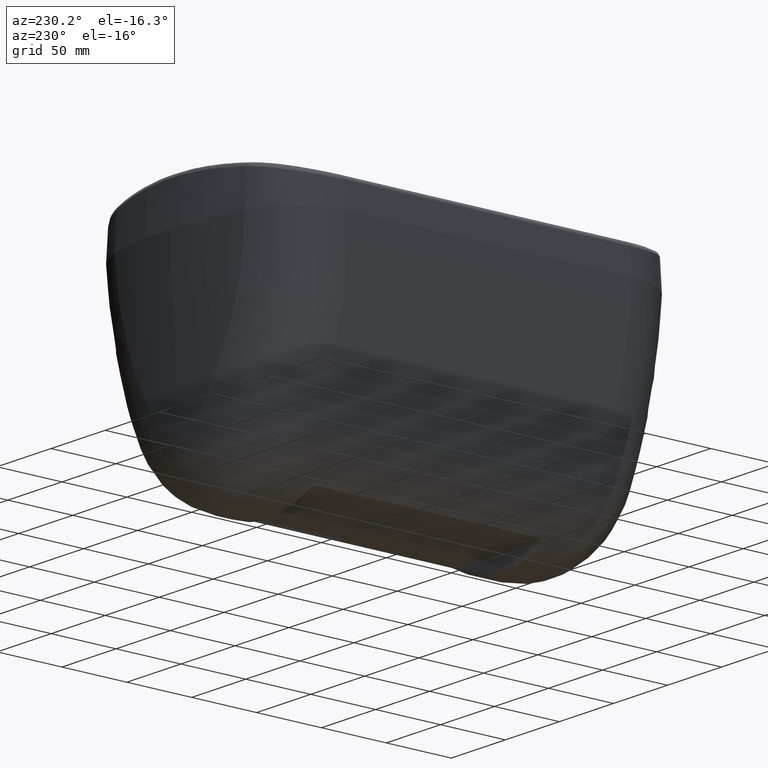
[diagram: clean part render]
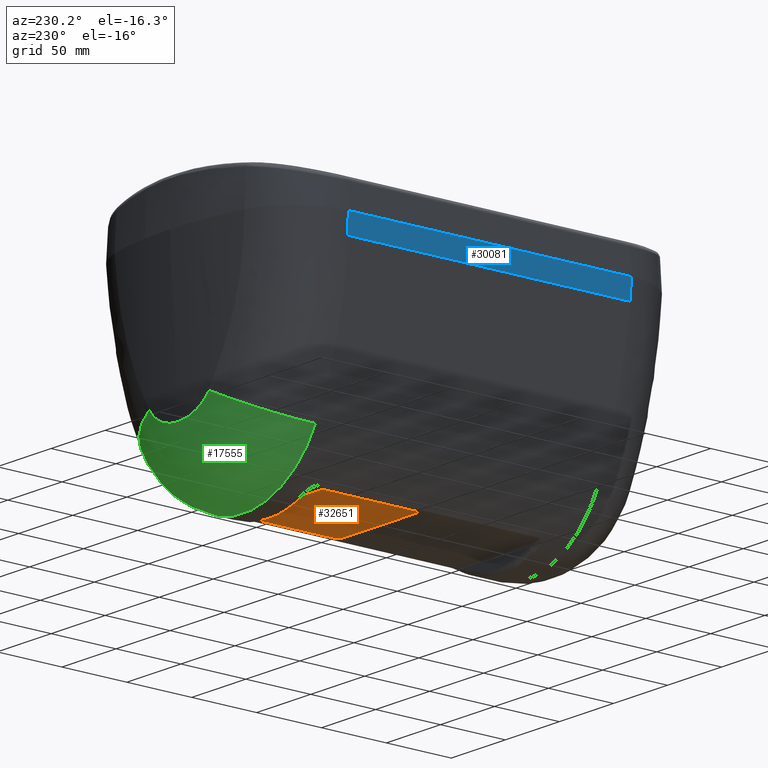
[diagram: same view with three faces highlighted in distinct colors, each labeled with its STEP entity id]
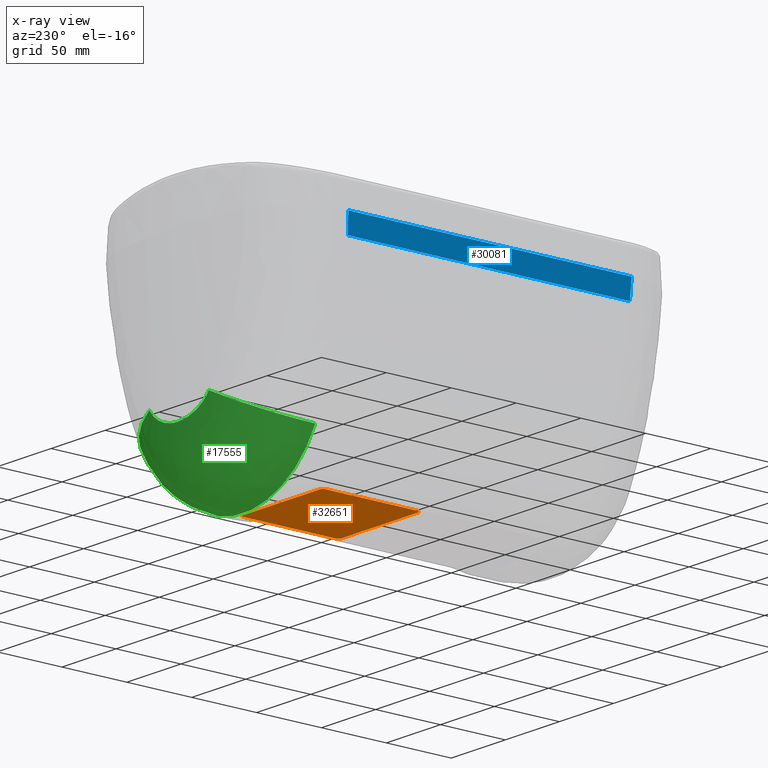
[diagram: x-ray of the same camera — body ghosted, the three highlighted faces saturated]
A machine part, auxiliary view with three faces highlighted in distinct colors.
The next image is the same camera in x-ray (body ghosted, the three faces saturated) — at least one of them is partly hidden behind the body in this view.
Their STEP definitions:

[orange] entity #32651 — the highlighted planar face has unit normal (0, 0, -1).
#323 = CARTESIAN_POINT ( 'NONE',  ( 35.49999999999997868, 57.50000000000010658, 91.49999999999971578 ) ) ;
#661 = VERTEX_POINT ( 'NONE', #11418 ) ;
#4736 = DIRECTION ( 'NONE',  ( 1.387778780781440499E-16, 4.287526199837195250E-16, -1.000000000000000000 ) ) ;
#4924 = VECTOR ( 'NONE', #21947, 1000.000000000000000 ) ;
#6111 = ORIENTED_EDGE ( 'NONE', *, *, #19434, .T. ) ;
#6197 = DIRECTION ( 'NONE',  ( 1.387778780781440499E-16, 4.287526199837195250E-16, -1.000000000000000000 ) ) ;
#6455 = CARTESIAN_POINT ( 'NONE',  ( -35.50000000000002842, 55.00000000000004974, 91.49999999999970157 ) ) ;
#7437 = CIRCLE ( 'NONE', #23354, 2.500000000000002220 ) ;
#7470 = CARTESIAN_POINT ( 'NONE',  ( -35.50000000000027711, 128.5000000000000284, 91.49999999999974420 ) ) ;
#7553 = AXIS2_PLACEMENT_3D ( 'NONE', #18466, #4736, #34720 ) ;
#7983 = DIRECTION ( 'NONE',  ( 0.0000000000000000000, 1.000000000000000000, 0.0000000000000000000 ) ) ;
#8256 = CIRCLE ( 'NONE', #19076, 2.499999999999919176 ) ;
#8735 = CARTESIAN_POINT ( 'NONE',  ( 35.49999999999997868, 57.50000000000010658, 91.49999999999971578 ) ) ;
#8780 = ORIENTED_EDGE ( 'NONE', *, *, #9532, .T. ) ;
#9532 = EDGE_CURVE ( 'Defeatured_0_319+Defeatured_0_315+Defeatured_0_316+Defeatured_0_314', #661, #32474, #8256, .T. ) ;
#10257 = EDGE_CURVE ( 'Defeatured_0_319+Defeatured_0_313+Defeatured_0_314+Defeatured_0_312', #27743, #18774, #29270, .T. ) ;
#10911 = LINE ( 'NONE', #32365, #4924 ) ;
#11136 = AXIS2_PLACEMENT_3D ( 'NONE', #22808, #24757, #22105 ) ;
#11418 = CARTESIAN_POINT ( 'NONE',  ( -38.00000000000017764, 128.5000000000000284, 91.49999999999974420 ) ) ;
#12588 = LINE ( 'NONE', #34388, #17405 ) ;
#12768 = DIRECTION ( 'NONE',  ( 1.000000000000000000, 1.954618001100622051E-15, 0.0000000000000000000 ) ) ;
#12774 = EDGE_CURVE ( 'Defeatured_0_319+Defeatured_0_316+Defeatured_0_317+Defeatured_0_315', #29913, #661, #10911, .T. ) ;
#13197 = VECTOR ( 'NONE', #21566, 1000.000000000000000 ) ;
#13737 = AXIS2_PLACEMENT_3D ( 'NONE', #8735, #30585, #30761 ) ;
#14960 = CARTESIAN_POINT ( 'NONE',  ( -38.00000000000007816, 57.50000000000010658, 91.49999999999970157 ) ) ;
#15835 = EDGE_CURVE ( 'Defeatured_0_319+Defeatured_0_317+Defeatured_0_318+Defeatured_0_316', #29420, #29913, #21774, .T. ) ;
#17326 = ORIENTED_EDGE ( 'NONE', *, *, #31421, .T. ) ;
#17405 = VECTOR ( 'NONE', #23779, 1000.000000000000000 ) ;
#18466 = CARTESIAN_POINT ( 'NONE',  ( -35.50000000000002842, 57.50000000000010658, 91.49999999999970157 ) ) ;
#18774 = VERTEX_POINT ( 'NONE', #27197 ) ;
#18958 = FACE_OUTER_BOUND ( 'NONE', #30240, .T. ) ;
#19076 = AXIS2_PLACEMENT_3D ( 'NONE', #7470, #29481, #7983 ) ;
#19353 = EDGE_CURVE ( 'Defeatured_0_319+Defeatured_0_314+Defeatured_0_315+Defeatured_0_313', #32474, #27743, #29074, .T. ) ;
#19434 = EDGE_CURVE ( 'Defeatured_0_319+Defeatured_0_312+Defeatured_0_313+Defeatured_0_311', #18774, #30942, #12588, .T. ) ;
#21384 = ORIENTED_EDGE ( 'NONE', *, *, #15835, .T. ) ;
#21566 = DIRECTION ( 'NONE',  ( -1.000000000000000000, -7.818472004402510293E-16, -1.954618001100627573E-16 ) ) ;
#21774 = CIRCLE ( 'NONE', #7553, 2.500000000000043965 ) ;
#21931 = CARTESIAN_POINT ( 'NONE',  ( 35.49999999999997868, 55.00000000000010658, 91.49999999999971578 ) ) ;
#21947 = DIRECTION ( 'NONE',  ( -1.661425300935535311E-15, 1.000000000000000000, 5.863854003301890608E-16 ) ) ;
#22105 = DIRECTION ( 'NONE',  ( 0.0000000000000000000, 1.000000000000000000, 0.0000000000000000000 ) ) ;
#22808 = CARTESIAN_POINT ( 'NONE',  ( 35.49999999999992895, 128.5000000000001137, 91.49999999999974420 ) ) ;
#23354 = AXIS2_PLACEMENT_3D ( 'NONE', #323, #6197, #24877 ) ;
#23429 = CARTESIAN_POINT ( 'NONE',  ( -35.50000000000031264, 130.9999999999999716, 91.49999999999974420 ) ) ;
#23628 = ORIENTED_EDGE ( 'NONE', *, *, #33341, .T. ) ;
#23779 = DIRECTION ( 'NONE',  ( 7.818472004402510293E-16, -1.000000000000000000, -3.909236002201255146E-16 ) ) ;
#24757 = DIRECTION ( 'NONE',  ( 1.387778780781440499E-16, 4.287526199837195250E-16, -1.000000000000000000 ) ) ;
#24877 = DIRECTION ( 'NONE',  ( 0.0000000000000000000, 1.000000000000000000, 0.0000000000000000000 ) ) ;
#26813 = ORIENTED_EDGE ( 'NONE', *, *, #12774, .T. ) ;
#27197 = CARTESIAN_POINT ( 'NONE',  ( 37.99999999999992184, 128.5000000000001137, 91.49999999999974420 ) ) ;
#27395 = LINE ( 'NONE', #21931, #13197 ) ;
#27743 = VERTEX_POINT ( 'NONE', #29761 ) ;
#28013 = CARTESIAN_POINT ( 'NONE',  ( 37.99999999999997868, 57.50000000000010658, 91.49999999999971578 ) ) ;
#28575 = CARTESIAN_POINT ( 'NONE',  ( -35.50000000000027711, 130.9999999999999432, 91.49999999999974420 ) ) ;
#29074 = LINE ( 'NONE', #23429, #32656 ) ;
#29270 = CIRCLE ( 'NONE', #11136, 2.500000000000002220 ) ;
#29420 = VERTEX_POINT ( 'NONE', #6455 ) ;
#29481 = DIRECTION ( 'NONE',  ( 1.387778780781440499E-16, 4.287526199837195250E-16, -1.000000000000000000 ) ) ;
#29564 = ORIENTED_EDGE ( 'NONE', *, *, #10257, .T. ) ;
#29761 = CARTESIAN_POINT ( 'NONE',  ( 35.49999999999989342, 131.0000000000001137, 91.49999999999974420 ) ) ;
#29913 = VERTEX_POINT ( 'NONE', #14960 ) ;
#30240 = EDGE_LOOP ( 'NONE', ( #17326, #23628, #21384, #26813, #8780, #34553, #29564, #6111 ) ) ;
#30542 = CARTESIAN_POINT ( 'NONE',  ( 35.49999999999997868, 55.00000000000010658, 91.49999999999971578 ) ) ;
#30585 = DIRECTION ( 'NONE',  ( 1.387778780781440252E-16, 4.287526199837195743E-16, -1.000000000000000000 ) ) ;
#30761 = DIRECTION ( 'NONE',  ( 0.0000000000000000000, 1.000000000000000000, 4.287526199837195743E-16 ) ) ;
#30942 = VERTEX_POINT ( 'NONE', #28013 ) ;
#31421 = EDGE_CURVE ( 'Defeatured_0_319+Defeatured_0_311+Defeatured_0_312+Defeatured_0_318', #30942, #31521, #7437, .T. ) ;
#31521 = VERTEX_POINT ( 'NONE', #30542 ) ;
#32365 = CARTESIAN_POINT ( 'NONE',  ( -38.00000000000006395, 57.50000000000010658, 91.49999999999970157 ) ) ;
#32474 = VERTEX_POINT ( 'NONE', #28575 ) ;
#32651 = ADVANCED_FACE ( 'Defeatured_0_319', ( #18958 ), #35051, .T. ) ;
#32656 = VECTOR ( 'NONE', #12768, 1000.000000000000000 ) ;
#33341 = EDGE_CURVE ( 'Defeatured_0_319+Defeatured_0_318+Defeatured_0_311+Defeatured_0_317', #31521, #29420, #27395, .T. ) ;
#34388 = CARTESIAN_POINT ( 'NONE',  ( 37.99999999999992184, 128.5000000000001137, 91.49999999999974420 ) ) ;
#34553 = ORIENTED_EDGE ( 'NONE', *, *, #19353, .T. ) ;
#34720 = DIRECTION ( 'NONE',  ( 0.0000000000000000000, 1.000000000000000000, 0.0000000000000000000 ) ) ;
#35051 = PLANE ( 'NONE',  #13737 ) ;

[blue] entity #30081 — the highlighted planar face has unit normal (0.9975, -0, 0.0712).
#713 = VECTOR ( 'NONE', #15178, 1000.000000000000000 ) ;
#1327 = EDGE_LOOP ( 'NONE', ( #2132, #31029, #1846, #33406 ) ) ;
#1605 = CARTESIAN_POINT ( 'NONE',  ( -96.92857142857096164, -113.1742597790912015, 228.9999999999998863 ) ) ;
#1783 = DIRECTION ( 'NONE',  ( 2.465190328815662439E-32, 1.000000000000000000, 4.287526199837192785E-16 ) ) ;
#1846 = ORIENTED_EDGE ( 'NONE', *, *, #19545, .F. ) ;
#1945 = DIRECTION ( 'NONE',  ( 0.9974586998307349850, -3.054735934842729368E-17, 0.07124704998790964972 ) ) ;
#2042 = VECTOR ( 'NONE', #18979, 1000.000000000000114 ) ;
#2132 = ORIENTED_EDGE ( 'NONE', *, *, #27276, .F. ) ;
#4801 = LINE ( 'NONE', #1605, #29772 ) ;
#6626 = LINE ( 'NONE', #11820, #713 ) ;
#7833 = LINE ( 'NONE', #26503, #21120 ) ;
#7970 = CARTESIAN_POINT ( 'NONE',  ( -98.00000000000001421, -113.1742597790912015, 243.9999999999999147 ) ) ;
#8547 = CARTESIAN_POINT ( 'NONE',  ( -96.92857142857060637, 160.4561606874803203, 228.9999999999907061 ) ) ;
#8761 = CARTESIAN_POINT ( 'NONE',  ( -98.00000000000049738, 160.9795617300109711, 244.0000000000437979 ) ) ;
#10833 = FACE_OUTER_BOUND ( 'NONE', #1327, .T. ) ;
#11820 = CARTESIAN_POINT ( 'NONE',  ( -98.00000000000001421, -113.1742597790912015, 243.9999999999999147 ) ) ;
#13110 = VERTEX_POINT ( 'NONE', #8761 ) ;
#13567 = VERTEX_POINT ( 'NONE', #26573 ) ;
#13640 = CARTESIAN_POINT ( 'NONE',  ( -98.00000000000005684, 160.9795617300000288, 244.0000000000006537 ) ) ;
#15178 = DIRECTION ( 'NONE',  ( -2.465190328815662439E-32, -1.000000000000000000, -4.287526199837192785E-16 ) ) ;
#18689 = DIRECTION ( 'NONE',  ( 0.07124704998790964972, 4.276630308779818527E-16, -0.9974586998307349850 ) ) ;
#18720 = DIRECTION ( 'NONE',  ( 0.07120393591655135856, 0.03478366668927578703, -0.9968551028317209628 ) ) ;
#18979 = DIRECTION ( 'NONE',  ( -0.07120393591655764520, 0.03478366668652554256, 0.9968551028318164420 ) ) ;
#19545 = EDGE_CURVE ( 'Defeatured_0_277+Defeatured_0_275+Defeatured_0_276+Defeatured_0_262', #29760, #13110, #24816, .T. ) ;
#21120 = VECTOR ( 'NONE', #18720, 1000.000000000000114 ) ;
#22722 = EDGE_CURVE ( 'Defeatured_0_261+Defeatured_0_275+Defeatured_0_262+Defeatured_0_252', #13110, #29133, #6626, .T. ) ;
#24494 = EDGE_CURVE ( 'Defeatured_0_292+Defeatured_0_275+Defeatured_0_274+Defeatured_0_276', #13567, #29760, #4801, .T. ) ;
#24816 = LINE ( 'NONE', #13640, #2042 ) ;
#24827 = AXIS2_PLACEMENT_3D ( 'NONE', #7970, #1945, #18689 ) ;
#26503 = CARTESIAN_POINT ( 'NONE',  ( -96.92857142857144481, -56.88702100530215233, 228.9999999999999147 ) ) ;
#26573 = CARTESIAN_POINT ( 'NONE',  ( -96.92857142857126007, -56.88702100530224470, 228.9999999999999147 ) ) ;
#27276 = EDGE_CURVE ( 'Defeatured_0_268+Defeatured_0_275+Defeatured_0_252+Defeatured_0_274', #29133, #13567, #7833, .T. ) ;
#29133 = VERTEX_POINT ( 'NONE', #29641 ) ;
#29641 = CARTESIAN_POINT ( 'NONE',  ( -98.00000000000002842, -57.41042204809630789, 243.9999999999999432 ) ) ;
#29760 = VERTEX_POINT ( 'NONE', #8547 ) ;
#29772 = VECTOR ( 'NONE', #1783, 1000.000000000000000 ) ;
#30081 = ADVANCED_FACE ( 'Defeatured_0_275', ( #10833 ), #34959, .F. ) ;
#31029 = ORIENTED_EDGE ( 'NONE', *, *, #22722, .F. ) ;
#33406 = ORIENTED_EDGE ( 'NONE', *, *, #24494, .F. ) ;
#34959 = PLANE ( 'NONE',  #24827 ) ;

[green] entity #17555 — the highlighted face is a freeform B-spline surface patch.
#106 = CARTESIAN_POINT ( 'NONE',  ( -57.33067103575692158, 160.2125946245564307, 105.8176486531847758 ) ) ;
#286 = CARTESIAN_POINT ( 'NONE',  ( -66.52291700636753546, 160.1409723307727404, 119.7497775905929984 ) ) ;
#633 = CARTESIAN_POINT ( 'NONE',  ( -20.36847864784035167, 160.5835551206649825, 81.83161361336055961 ) ) ;
#817 = CARTESIAN_POINT ( 'NONE',  ( -17.56351056426971624, 210.1920347754916634, 130.7676854332778476 ) ) ;
#820 = CARTESIAN_POINT ( 'NONE',  ( 13.38365482053825950, 160.6201742101183356, 80.18848205519901740 ) ) ;
#1008 = CARTESIAN_POINT ( 'NONE',  ( -20.60353160150919294, 160.5820856241054173, 81.89857197094968910 ) ) ;
#1094 = CARTESIAN_POINT ( 'NONE',  ( -13.66642305645340905, 210.3411685142447709, 128.9129391054650569 ) ) ;
#1136 = CARTESIAN_POINT ( 'NONE',  ( 25.02731979705722409, 209.8603468405567014, 136.6505148071808549 ) ) ;
#1173 = CARTESIAN_POINT ( 'NONE',  ( -11.85477433298538941, 210.3973711055220974, 128.2817223637825066 ) ) ;
#1176 = CARTESIAN_POINT ( 'NONE',  ( 35.46917483433931295, 160.4589987432394196, 87.95414820769990172 ) ) ;
#1264 = CARTESIAN_POINT ( 'NONE',  ( 7.089153362493922472, 208.0612755730997492, 79.25185832017406540 ) ) ;
#1355 = CARTESIAN_POINT ( 'NONE',  ( -27.75210603762990402, 160.5304221476889950, 84.32743137069282113 ) ) ;
#1442 = CARTESIAN_POINT ( 'NONE',  ( -14.27542655665100568, 207.9204004448808121, 80.28805695399408648 ) ) ;
#1485 = CARTESIAN_POINT ( 'NONE',  ( 22.12205943028476440, 209.9902644506617264, 133.8733944043611359 ) ) ;
#1526 = CARTESIAN_POINT ( 'NONE',  ( 38.92670770618020981, 160.4231119721449090, 89.94878527929127188 ) ) ;
#1611 = FACE_OUTER_BOUND ( 'NONE', #13694, .T. ) ;
#1653 = CARTESIAN_POINT ( 'NONE',  ( 1.172619606159756689, 210.5777893796681042, 126.3982042885579204 ) ) ;
#1700 = CARTESIAN_POINT ( 'NONE',  ( 54.62712542955431871, 160.2424995661893945, 102.7617585046050834 ) ) ;
#1788 = CARTESIAN_POINT ( 'NONE',  ( -41.94116541870660342, 160.3906967706308251, 91.79734804991701935 ) ) ;
#1829 = CARTESIAN_POINT ( 'NONE',  ( 18.67107833760407942, 210.1447749684742519, 131.4258098915974244 ) ) ;
#2067 = ORIENTED_EDGE ( 'NONE', *, *, #14010, .F. ) ;
#2439 = CARTESIAN_POINT ( 'NONE',  ( -55.12716149219672701, 160.2368300896789606, 103.3034288671561143 ) ) ;
#2532 = DIRECTION ( 'NONE',  ( 0.4542897975401229971, -0.003587583714181883862, 0.8908467371518223876 ) ) ;
#2604 = DIRECTION ( 'NONE',  ( -0.8908524701430607928, 0.0000000000000000000, -0.4542927210951182571 ) ) ;
#2620 = CARTESIAN_POINT ( 'NONE',  ( -48.02035829806967371, 160.3197984049205900, 96.48717611118780724 ) ) ;
#2667 = CARTESIAN_POINT ( 'NONE',  ( 27.47262071041258835, 209.7702916524337695, 139.8634512323720571 ) ) ;
#2791 = CARTESIAN_POINT ( 'NONE',  ( -50.89880937012636508, 160.2858893291745233, 99.02761639448239350 ) ) ;
#2956 = CARTESIAN_POINT ( 'NONE',  ( -47.43949260410020230, 160.3266279661127669, 96.00529458582791165 ) ) ;
#3142 = CARTESIAN_POINT ( 'NONE',  ( -19.22123385035990140, 210.1208081338485840, 131.7669693508614159 ) ) ;
#3320 = CARTESIAN_POINT ( 'NONE',  ( -2.327596318080734417, 210.5732280334680695, 126.4435979247294455 ) ) ;
#3322 = CARTESIAN_POINT ( 'NONE',  ( -42.60413567215064035, 160.3822551266392793, 92.34047857060933495 ) ) ;
#3497 = CARTESIAN_POINT ( 'NONE',  ( -5.309227279275379630, 210.5424094969016835, 126.7507606232306188 ) ) ;
#3500 = CARTESIAN_POINT ( 'NONE',  ( 16.79937527465589042, 160.6039751241641227, 80.90890086929894665 ) ) ;
#3686 = CARTESIAN_POINT ( 'NONE',  ( -39.67105950344529930, 160.4149421907150668, 90.40886562933756920 ) ) ;
#3780 = CARTESIAN_POINT ( 'NONE',  ( -26.17736543490471135, 209.8070539495837750, 137.8297893907110563 ) ) ;
#3824 = CARTESIAN_POINT ( 'NONE',  ( 17.96328689579580029, 210.1749955297590873, 131.0040081534970113 ) ) ;
#3866 = CARTESIAN_POINT ( 'NONE',  ( 36.75794342759561317, 160.4458950909074986, 88.67178000601651888 ) ) ;
#4033 = CARTESIAN_POINT ( 'NONE',  ( 20.21668405134255764, 160.5844966516118006, 81.78875651112531386 ) ) ;
#4125 = CARTESIAN_POINT ( 'NONE',  ( -26.78305227286630696, 160.5391247295168000, 83.88341972647504008 ) ) ;
#4171 = CARTESIAN_POINT ( 'NONE',  ( 12.39963410976473135, 210.3810084489420262, 128.4600205478380133 ) ) ;
#4302 = CARTESIAN_POINT ( 'NONE',  ( -17.32085394860690641, 210.2028622875857309, 130.6179146105940561 ) ) ;
#4387 = CARTESIAN_POINT ( 'NONE',  ( 51.78239739202875569, 160.2752209042275524, 99.86428033635226598 ) ) ;
#4468 = CARTESIAN_POINT ( 'NONE',  ( -52.52185815121659829, 160.2663863822897383, 100.4825101725430301 ) ) ;
#4505 = CARTESIAN_POINT ( 'NONE',  ( 20.35995762658447461, 210.0705337369078336, 132.5157366747359333 ) ) ;
#4546 = CARTESIAN_POINT ( 'NONE',  ( 57.37422143748731429, 160.2112789258794123, 105.7237701534776164 ) ) ;
#4612 = ORIENTED_EDGE ( 'NONE', *, *, #31676, .F. ) ;
#4716 = CARTESIAN_POINT ( 'NONE',  ( 54.69030843666973851, 160.2417810214113274, 102.8296733704634534 ) ) ;
#4806 = CARTESIAN_POINT ( 'NONE',  ( 20.63063212429899451, 210.0588555654447305, 132.6918301788710437 ) ) ;
#5036 = VERTEX_POINT ( 'NONE', #22370 ) ;
#5101 = CARTESIAN_POINT ( 'NONE',  ( -63.53874643824755708, 160.1545679716840596, 114.2957724012877634 ) ) ;
#5281 = CARTESIAN_POINT ( 'NONE',  ( -52.76278750696530295, 160.2639929445541327, 100.8042339901308537 ) ) ;
#5335 = CARTESIAN_POINT ( 'NONE',  ( 59.38950774406139033, 160.1883747980128021, 107.8966984616730400 ) ) ;
#5621 = CARTESIAN_POINT ( 'NONE',  ( -21.98029349921442943, 160.1409723307725699, 142.4644136453489978 ) ) ;
#5810 = CARTESIAN_POINT ( 'NONE',  ( -8.580621384261140960, 210.4830941117635064, 127.3585751335772898 ) ) ;
#5988 = CARTESIAN_POINT ( 'NONE',  ( -22.42022046140342795, 209.9764657672552062, 134.1191997757960905 ) ) ;
#5992 = CARTESIAN_POINT ( 'NONE',  ( -20.30143948845261548, 160.5839716995786262, 81.81264687141701586 ) ) ;
#6160 = CARTESIAN_POINT ( 'NONE',  ( -1.975192157726474758E-08, 210.5793642802651959, 126.3832021675706585 ) ) ;
#6163 = CARTESIAN_POINT ( 'NONE',  ( -20.31260935620639785, 160.5839023612863912, 81.81580342047303134 ) ) ;
#6335 = CARTESIAN_POINT ( 'NONE',  ( -14.87882149102282447, 210.2968297370910307, 129.4425016966833653 ) ) ;
#6338 = CARTESIAN_POINT ( 'NONE',  ( 20.12819261125101988, 160.5850426615099025, 81.76391890637093240 ) ) ;
#6433 = CARTESIAN_POINT ( 'NONE',  ( -63.38716919303779918, 160.1491545736997750, 113.6006835031590185 ) ) ;
#6478 = CARTESIAN_POINT ( 'NONE',  ( 5.633050985374275399, 210.5384335570217900, 126.7860525201532909 ) ) ;
#6526 = CARTESIAN_POINT ( 'NONE',  ( -35.73632841790740855, 160.4582279506790883, 87.99214233177637823 ) ) ;
#6611 = CARTESIAN_POINT ( 'NONE',  ( -17.01839577413880633, 160.6043379199488186, 80.88557040491703276 ) ) ;
#6697 = CARTESIAN_POINT ( 'NONE',  ( -32.47219678982518332, 160.4898919334789014, 86.34302412107452085 ) ) ;
#6780 = CARTESIAN_POINT ( 'NONE',  ( -49.99679515713940248, 160.2965811615498239, 98.10267124603203115 ) ) ;
#6820 = CARTESIAN_POINT ( 'NONE',  ( 22.15265504945627839, 209.9888651480169415, 133.8986410966164158 ) ) ;
#6857 = CARTESIAN_POINT ( 'NONE',  ( -27.47262071041259190, 209.7702916524336558, 139.8634512323720571 ) ) ;
#6952 = CARTESIAN_POINT ( 'NONE',  ( -33.09223158381070107, 160.4836138262257919, 86.64447313758202540 ) ) ;
#7141 = CARTESIAN_POINT ( 'NONE',  ( 6.784820612751264690, 160.6424237364248029, 79.23083137874704107 ) ) ;
#7185 = CARTESIAN_POINT ( 'NONE',  ( 18.87928842094602544, 210.1357822465088248, 131.5537112806842117 ) ) ;
#7390 = CARTESIAN_POINT ( 'NONE',  ( 65.15129278688492320, 160.1445513695844625, 117.0600694634434831 ) ) ;
#7439 = B_SPLINE_CURVE_WITH_KNOTS ( 'NONE', 3,
 ( #19491, #8796, #22857, #1136, #33818, #28682, #34142, #12371, #12534, #28851, #26019, #6820, #1485, #20723, #14858, #9507, #17529, #4505, #31513, #7185, #23371, #1829, #30816, #3824, #9668, #14689, #22686, #9852, #33640, #12024, #20380, #18057, #4171, #17696, #23203, #15366, #23035, #31166, #30997, #31328, #6478, #26190, #33466, #1653, #33974, #9145, #20029, #17357, #28166, #25500 ),
 .UNSPECIFIED., .F., .F.,
 ( 4, 2, 2, 1, 1, 1, 1, 2, 2, 1, 1, 1, 1, 2, 2, 1, 1, 1, 2, 2, 1, 1, 1, 2, 2, 2, 1, 1, 1, 1, 1, 1, 1, 1, 2, 4 ),
 ( 0.0000000000000000000, 0.06247639660018536323, 0.06442878399394036393, 0.06638117138769535075, 0.07028594617520633747, 0.07809549575022819989, 0.09371459490027182759, 0.1249527932003601516, 0.1269051805941160960, 0.1288575679878719848, 0.1327623427753839014, 0.1405718923504076234, 0.1561909915004541793, 0.1874291898005473744, 0.1913339645880584028, 0.1952387393755694034, 0.2030482889505907107, 0.2186673881006339915, 0.2499055864007203587, 0.2538103611882312483, 0.2577151359757420823, 0.2655246855507637505, 0.2811437847008076418, 0.3123819830008955356, 0.3748583796010710456, 0.3787631543885819352, 0.3826679291760928248, 0.3904774787511142708, 0.4060965779011571630, 0.4373347762012430029, 0.4685729745013288983, 0.4841920736513717904, 0.4920016232263932365, 0.4959063980139039041, 0.4978587854076592656, 0.4998111728014146271 ),
 .UNSPECIFIED. ) ;
#7478 = CARTESIAN_POINT ( 'NONE',  ( 17.62562492387809598, 207.8215774866427807, 81.01913673298706442 ) ) ;
#7823 = CARTESIAN_POINT ( 'NONE',  ( 18.45218139754549114, 210.1549098847857522, 131.2623891471470472 ) ) ;
#7863 = DIRECTION ( 'NONE',  ( 0.8908524701430605708, 0.0000000000000000000, -0.4542927210951187567 ) ) ;
#7946 = CARTESIAN_POINT ( 'NONE',  ( -54.84826123083889371, 160.2399866054252300, 103.0001191524498836 ) ) ;
#7993 = CARTESIAN_POINT ( 'NONE',  ( 27.84950334620649315, 207.4282001761818037, 84.01723391896506143 ) ) ;
#8126 = CARTESIAN_POINT ( 'NONE',  ( -47.36573286744000200, 160.3274946821886715, 95.94470964667563351 ) ) ;
#8650 = CARTESIAN_POINT ( 'NONE',  ( -19.46871482515417995, 210.1099483549519391, 131.9256101484361920 ) ) ;
#8796 = CARTESIAN_POINT ( 'NONE',  ( 26.76443733548131476, 209.7903915108496165, 138.7515426117142567 ) ) ;
#8841 = CARTESIAN_POINT ( 'NONE',  ( 30.47344294193582925, 160.5063879382206835, 85.47958071269080449 ) ) ;
#9010 = CARTESIAN_POINT ( 'NONE',  ( -0.1665298321013071736, 210.5793367416561352, 126.3834713553985978 ) ) ;
#9013 = CARTESIAN_POINT ( 'NONE',  ( -41.90199998852010310, 160.3901447942037350, 91.85865988400360038 ) ) ;
#9145 = CARTESIAN_POINT ( 'NONE',  ( 0.2936848010274062393, 210.5792653896779143, 126.3841397577583905 ) ) ;
#9186 = CARTESIAN_POINT ( 'NONE',  ( -15.62756376292096583, 210.2685697962087943, 129.7908704603053422 ) ) ;
#9189 = CARTESIAN_POINT ( 'NONE',  ( -20.32936608940084611, 160.5837983007033927, 81.82054089918744921 ) ) ;
#9369 = CARTESIAN_POINT ( 'NONE',  ( -39.35476959224836691, 160.4184294666176243, 90.21209727895605113 ) ) ;
#9463 = CARTESIAN_POINT ( 'NONE',  ( -13.68493646138320585, 160.6203850540458120, 80.18476807202202394 ) ) ;
#9507 = CARTESIAN_POINT ( 'NONE',  ( 21.74033131748356595, 210.0077180125257712, 133.5632938159963317 ) ) ;
#9547 = CARTESIAN_POINT ( 'NONE',  ( 32.10455270989977805, 160.4915966227629838, 86.22751229023324981 ) ) ;
#9629 = CARTESIAN_POINT ( 'NONE',  ( -27.77526909801980892, 207.3993550731128437, 84.26019866601605202 ) ) ;
#9668 = CARTESIAN_POINT ( 'NONE',  ( 16.95194584685424033, 210.2170890785043582, 130.4376546609933882 ) ) ;
#9803 = CARTESIAN_POINT ( 'NONE',  ( -53.33292175195830964, 205.5692433984178251, 101.2891057694870796 ) ) ;
#9852 = CARTESIAN_POINT ( 'NONE',  ( 15.29369348441339405, 210.2811536814062379, 129.6358781205720447 ) ) ;
#10080 = CARTESIAN_POINT ( 'NONE',  ( 45.64119200421773570, 160.3479598527232781, 94.57027074950221390 ) ) ;
#10163 = CARTESIAN_POINT ( 'NONE',  ( 53.24799250872339229, 205.5767966571967804, 101.2033559777610492 ) ) ;
#10244 = CARTESIAN_POINT ( 'NONE',  ( 54.71736244570544727, 160.2414734556934377, 102.8588000940357716 ) ) ;
#10330 = CARTESIAN_POINT ( 'NONE',  ( 63.65999424636569159, 204.6215349045588425, 114.1034686725110845 ) ) ;
#10514 = CARTESIAN_POINT ( 'NONE',  ( 21.65401253469719478, 210.0117716825897674, 133.4626771426610503 ) ) ;
#10639 = CARTESIAN_POINT ( 'NONE',  ( -54.87991023129863777, 160.2396275922088478, 103.0343937053789602 ) ) ;
#10684 = CARTESIAN_POINT ( 'NONE',  ( 13.53705162170999543, 160.6209932596758279, 80.15824571199603099 ) ) ;
#10805 = CARTESIAN_POINT ( 'NONE',  ( -55.40746457744484843, 160.2336744371797295, 103.6111918813593888 ) ) ;
#11341 = CARTESIAN_POINT ( 'NONE',  ( -16.53147046993241887, 210.2335720618829953, 130.2299997394207480 ) ) ;
#11447 = VERTEX_POINT ( 'NONE', #32794 ) ;
#11512 = CARTESIAN_POINT ( 'NONE',  ( -0.5826862533813640388, 210.5789793611476739, 126.3869756221923097 ) ) ;
#11516 = CARTESIAN_POINT ( 'NONE',  ( -16.86316030858841231, 160.6052983499309335, 80.84187109034768071 ) ) ;
#11706 = CARTESIAN_POINT ( 'NONE',  ( -4.313475865932220543, 210.5549933636457638, 126.6247920100681768 ) ) ;
#11710 = CARTESIAN_POINT ( 'NONE',  ( -39.11700220376467740, 160.4210471451911246, 90.06540986125712323 ) ) ;
#11886 = CARTESIAN_POINT ( 'NONE',  ( -11.93525659543126594, 210.3949467720259463, 128.3086803303927752 ) ) ;
#11889 = CARTESIAN_POINT ( 'NONE',  ( 25.75300789870187401, 160.5467415531167603, 83.49828616007121695 ) ) ;
#11980 = CARTESIAN_POINT ( 'NONE',  ( -34.17811007370230669, 207.0399268740678167, 87.17694848214004821 ) ) ;
#12024 = CARTESIAN_POINT ( 'NONE',  ( 14.91982701463553163, 210.2950154408297010, 129.4667990650126228 ) ) ;
#12059 = CARTESIAN_POINT ( 'NONE',  ( -13.96910790681449654, 210.3295942191503229, 129.0515628915747754 ) ) ;
#12062 = CARTESIAN_POINT ( 'NONE',  ( 38.83661809409678511, 160.4240782043126217, 89.89382686142052137 ) ) ;
#12151 = CARTESIAN_POINT ( 'NONE',  ( -23.56744953846210677, 160.5637111595158331, 82.73491269732203079 ) ) ;
#12239 = CARTESIAN_POINT ( 'NONE',  ( 20.17499417585554156, 160.5847541372109788, 81.77704261890131932 ) ) ;
#12329 = CARTESIAN_POINT ( 'NONE',  ( -7.206865853162356395, 208.0598449780797807, 79.26222837248006670 ) ) ;
#12371 = CARTESIAN_POINT ( 'NONE',  ( 24.66928542108808742, 209.8756574221329458, 136.2587812486152927 ) ) ;
#12494 = CARTESIAN_POINT ( 'NONE',  ( -21.69046627722150689, 210.0100976724407644, 133.4912261606550601 ) ) ;
#12534 = CARTESIAN_POINT ( 'NONE',  ( 24.27381897047381898, 209.8928705915023158, 135.8416239021799186 ) ) ;
#12754 = CARTESIAN_POINT ( 'NONE',  ( -25.11279000942553097, 209.8566275381293735, 136.7440783629668601 ) ) ;
#12758 = CARTESIAN_POINT ( 'NONE',  ( 59.63310395726391988, 160.1880456116746529, 108.5977235361564084 ) ) ;
#12940 = CARTESIAN_POINT ( 'NONE',  ( 48.64032274802360689, 160.3121601042221300, 96.98872696863747933 ) ) ;
#13100 = B_SPLINE_CURVE_WITH_KNOTS ( 'NONE', 3,
 ( #6160, #14366, #9010, #19894, #11512, #33145, #3320, #33505, #11706, #33680, #3497, #27844, #19715, #14552, #19352, #5810, #20069, #25189, #22365, #1173, #11886, #25537, #28206, #17399, #12059, #6335, #22185, #9186, #22896, #27486, #11341, #817, #22726, #16663, #16850, #17212, #3142, #8650, #14019, #24842, #30859, #33330, #30673, #30311, #5988, #27671, #22551, #14192, #28025, #25007, #12754, #25891, #28892, #18268, #34183, #31556, #23592, #6857 ),
 .UNSPECIFIED., .F., .F.,
 ( 4, 2, 1, 1, 1, 2, 2, 1, 2, 2, 1, 1, 2, 2, 1, 1, 1, 2, 2, 1, 1, 1, 2, 2, 1, 1, 1, 1, 2, 2, 1, 1, 1, 1, 2, 2, 1, 1, 1, 1, 4 ),
 ( 0.4998111728014146271, 0.5037188980139025718, 0.5076266232263906275, 0.5154420736513665169, 0.5310729745013184067, 0.5623347762012221862, 0.5779656770511740760, 0.5935965779011258547, 0.6248583796010296343, 0.6326738300260057457, 0.6404892804509818571, 0.6561201813009344130, 0.6873819830008397469, 0.6912897082133282467, 0.6951974334258166355, 0.7030128838507935241, 0.7186437847007473012, 0.7499055864006554106, 0.7538133116131442435, 0.7577210368256328543, 0.7655364872506102980, 0.7811673881005647413, 0.8124291898004736279, 0.8143830524067178223, 0.8163369150129619056, 0.8202446402254508495, 0.8280600906504285152, 0.8436909915003838467, 0.8749527932002956199, 0.8769066558065405914, 0.8788605184127857850, 0.8827682436252757281, 0.8905836940502556143, 0.9062145949002162748, 0.9374763966001377069, 0.9394302592063833446, 0.9413841218126288712, 0.9452918470251200356, 0.9531072974501033634, 0.9687381983000687979, 1.000000000000000000 ),
 .UNSPECIFIED. ) ;
#13170 = VERTEX_POINT ( 'NONE', #23338 ) ;
#13185 = CARTESIAN_POINT ( 'NONE',  ( 33.07774199988099895, 160.4859008631708264, 86.37506856764504448 ) ) ;
#13319 = CARTESIAN_POINT ( 'NONE',  ( -54.98610237311800120, 160.2384245132282672, 103.1496642316609211 ) ) ;
#13498 = CARTESIAN_POINT ( 'NONE',  ( -47.52327157675972558, 160.3256433727033823, 96.07427221398387474 ) ) ;
#13667 = CARTESIAN_POINT ( 'NONE',  ( -47.69002989780668855, 160.3236831276950056, 96.21209272907708510 ) ) ;
#13694 = EDGE_LOOP ( 'NONE', ( #2067, #4612, #20444, #32230, #18278 ) ) ;
#14010 = EDGE_CURVE ( 'Defeatured_0_300+Defeatured_0_293+Defeatured_0_302+Defeatured_0_294', #5036, #13170, #17249, .T. ) ;
#14019 = CARTESIAN_POINT ( 'NONE',  ( -19.95790407021431534, 210.0883022868181911, 132.2477607629287490 ) ) ;
#14192 = CARTESIAN_POINT ( 'NONE',  ( -23.93726678139636022, 209.9074884260710405, 135.4857717391653580 ) ) ;
#14195 = CARTESIAN_POINT ( 'NONE',  ( -20.91793819867341497, 160.5800985184845331, 81.98924918862550726 ) ) ;
#14366 = CARTESIAN_POINT ( 'NONE',  ( -0.08140576578413401265, 210.5793642815891076, 126.3832021931768139 ) ) ;
#14369 = CARTESIAN_POINT ( 'NONE',  ( 18.08241449237777942, 160.5970313317567388, 81.22109593120059401 ) ) ;
#14552 = CARTESIAN_POINT ( 'NONE',  ( -8.089131175525590578, 210.4937133740414765, 127.2480719772026418 ) ) ;
#14556 = CARTESIAN_POINT ( 'NONE',  ( 18.72413849812541642, 160.5934352733852108, 81.38325125968935936 ) ) ;
#14646 = CARTESIAN_POINT ( 'NONE',  ( -44.71374217143490171, 160.3586541000598515, 93.76958274496901424 ) ) ;
#14648 = CARTESIAN_POINT ( 'NONE',  ( -27.47262071041259190, 209.7702916524336558, 139.8634512323720571 ) ) ;
#14689 = CARTESIAN_POINT ( 'NONE',  ( 16.05461525589696947, 210.2525156669170485, 129.9882544835406861 ) ) ;
#14728 = CARTESIAN_POINT ( 'NONE',  ( -39.06032197207464662, 160.4216706815891484, 90.03059630962575000 ) ) ;
#14814 = CARTESIAN_POINT ( 'NONE',  ( -1.419821756877348129, 210.5793271239427327, 126.3835676544890703 ) ) ;
#14858 = CARTESIAN_POINT ( 'NONE',  ( 21.96368472894047841, 209.9975071688378989, 133.7436071488490654 ) ) ;
#14898 = CARTESIAN_POINT ( 'NONE',  ( 22.83888888506117354, 160.5682835210777171, 82.52642178610838641 ) ) ;
#14983 = CARTESIAN_POINT ( 'NONE',  ( -5.651602271364738250, 210.5398960498837653, 126.7752966344370691 ) ) ;
#15164 = CARTESIAN_POINT ( 'NONE',  ( -24.48398782021401132, 207.5572562666197598, 83.03398071313408479 ) ) ;
#15330 = CARTESIAN_POINT ( 'NONE',  ( -45.74582314800951366, 206.2138388018687749, 94.54164328152509711 ) ) ;
#15366 = CARTESIAN_POINT ( 'NONE',  ( 7.821489105533476760, 210.4990779844730469, 127.1884315968902541 ) ) ;
#15413 = CARTESIAN_POINT ( 'NONE',  ( 44.61837505910584412, 160.3598798038993323, 93.78975613060845262 ) ) ;
#15960 = CARTESIAN_POINT ( 'NONE',  ( -60.64471896564157305, 160.1793323894019068, 110.0701347823311664 ) ) ;
#16050 = CARTESIAN_POINT ( 'NONE',  ( 21.98029349921437259, 160.1409723307725699, 142.4644136453479746 ) ) ;
#16138 = CARTESIAN_POINT ( 'NONE',  ( -49.20232408884027819, 160.3058803952195035, 97.49991861055232789 ) ) ;
#16190 = CARTESIAN_POINT ( 'NONE',  ( 63.40098298979650338, 160.1491185287607948, 113.6277718855890413 ) ) ;
#16322 = CARTESIAN_POINT ( 'NONE',  ( -48.29806662122903305, 160.3165299578148790, 96.72194219938289450 ) ) ;
#16663 = CARTESIAN_POINT ( 'NONE',  ( -19.00663610421770144, 210.1301732839606586, 131.6316687781620089 ) ) ;
#16762 = EDGE_CURVE ( 'Defeatured_0_294+Defeatured_0_293+Defeatured_0_300+Defeatured_0_276', #11447, #33960, #13100, .T. ) ;
#16850 = CARTESIAN_POINT ( 'NONE',  ( -19.04329331307870277, 210.1285768571247274, 131.6546400564978967 ) ) ;
#16852 = CARTESIAN_POINT ( 'NONE',  ( 38.90504723862370895, 160.4233444172259340, 89.93555868996730851 ) ) ;
#17031 = CARTESIAN_POINT ( 'NONE',  ( -8.350440815387976556, 160.6372091886765929, 79.44865908416579714 ) ) ;
#17212 = CARTESIAN_POINT ( 'NONE',  ( -19.11455200782083708, 210.1254686319728080, 131.6995022003674762 ) ) ;
#17215 = CARTESIAN_POINT ( 'NONE',  ( 19.47296053250666503, 160.5890225881581728, 81.58313612004273807 ) ) ;
#17249 = CIRCLE ( 'NONE', #20103, 49.99999999999998579 ) ;
#17309 = CARTESIAN_POINT ( 'NONE',  ( -20.64766627644900865, 210.0580859230477984, 132.7039547337890610 ) ) ;
#17357 = CARTESIAN_POINT ( 'NONE',  ( 0.08394774645425499837, 210.5793572048221449, 126.3832691204896435 ) ) ;
#17399 = CARTESIAN_POINT ( 'NONE',  ( -12.88146102467750076, 210.3655294737690724, 128.6390984104313873 ) ) ;
#17403 = CARTESIAN_POINT ( 'NONE',  ( -21.55015934087121465, 160.5760290722428465, 82.17545112490870451 ) ) ;
#17492 = CARTESIAN_POINT ( 'NONE',  ( -3.437993262171385123, 160.6478616130098089, 79.00110429650003141 ) ) ;
#17529 = CARTESIAN_POINT ( 'NONE',  ( 21.28787488022853225, 210.0283764803314170, 133.2075696158142080 ) ) ;
#17534 = CARTESIAN_POINT ( 'NONE',  ( -66.52291700636753546, 160.1409723307727404, 119.7497775905929984 ) ) ;
#17555 = ADVANCED_FACE ( 'Defeatured_0_293', ( #1611 ), #30038, .T. ) ;
#17570 = CARTESIAN_POINT ( 'NONE',  ( -26.20763574256039874, 160.5427712590941098, 83.73178455029830047 ) ) ;
#17696 = CARTESIAN_POINT ( 'NONE',  ( 10.51494509066705341, 210.4371958803436655, 127.8353208888138255 ) ) ;
#17829 = CARTESIAN_POINT ( 'NONE',  ( -9.732880508222759630, 210.4580954519437626, 127.6192242544720585 ) ) ;
#17919 = CARTESIAN_POINT ( 'NONE',  ( 49.92246065490714102, 160.2969671300769221, 98.11478604708041473 ) ) ;
#18012 = CARTESIAN_POINT ( 'NONE',  ( 14.12176941626639426, 207.9242885463827690, 80.25930587241805370 ) ) ;
#18057 = CARTESIAN_POINT ( 'NONE',  ( 13.32972645198986150, 210.3512592449572480, 128.7978091703083976 ) ) ;
#18101 = CARTESIAN_POINT ( 'NONE',  ( 40.39629441176670355, 160.4073361145182730, 90.84667660729877525 ) ) ;
#18182 = CARTESIAN_POINT ( 'NONE',  ( 52.43358811232010197, 160.2674283417967445, 100.3962073933240333 ) ) ;
#18268 = CARTESIAN_POINT ( 'NONE',  ( -25.44566757300264470, 209.8427588933341497, 137.1248557372590824 ) ) ;
#18270 = CARTESIAN_POINT ( 'NONE',  ( 38.91873590545936423, 160.4231975330280591, 89.94391616568465508 ) ) ;
#18278 = ORIENTED_EDGE ( 'NONE', *, *, #26894, .F. ) ;
#18355 = CARTESIAN_POINT ( 'NONE',  ( 66.59504168742127206, 204.3940304930927709, 119.8912116204410552 ) ) ;
#18540 = CARTESIAN_POINT ( 'NONE',  ( 42.93640873215478848, 206.4347760854077478, 92.46758586695010251 ) ) ;
#18834 = CARTESIAN_POINT ( 'NONE',  ( -53.86543499900444232, 160.2511394336684418, 101.9364771899551130 ) ) ;
#18883 = CARTESIAN_POINT ( 'NONE',  ( 44.68059107420030784, 160.3590386550288258, 93.74525284154003657 ) ) ;
#19008 = CARTESIAN_POINT ( 'NONE',  ( -46.03880472529482404, 160.3430853560768412, 94.85637431702285483 ) ) ;
#19186 = CARTESIAN_POINT ( 'NONE',  ( -55.96083558911809064, 160.2274959105785967, 104.2275911744994943 ) ) ;
#19352 = CARTESIAN_POINT ( 'NONE',  ( -8.254404259551515466, 210.4902096308450155, 127.2844423163999892 ) ) ;
#19491 = CARTESIAN_POINT ( 'NONE',  ( 27.47262071041257059, 209.7702916524336558, 139.8634512323716592 ) ) ;
#19536 = CARTESIAN_POINT ( 'NONE',  ( -65.15837584852958742, 160.1445328874430061, 117.0739591047899495 ) ) ;
#19715 = CARTESIAN_POINT ( 'NONE',  ( -7.278134466815253667, 210.5104102283693805, 127.0752743386911447 ) ) ;
#19718 = CARTESIAN_POINT ( 'NONE',  ( 37.84105507966015836, 160.4346403530076941, 89.29768381419101786 ) ) ;
#19894 = CARTESIAN_POINT ( 'NONE',  ( -0.3330150562042856199, 210.5792267477562802, 126.3845494689629874 ) ) ;
#19897 = CARTESIAN_POINT ( 'NONE',  ( 15.94456262782861167, 160.6082732199882344, 80.71692627185278468 ) ) ;
#19985 = CARTESIAN_POINT ( 'NONE',  ( -27.47262071041260967, 209.7702916524337695, 139.8634512323720571 ) ) ;
#20029 = CARTESIAN_POINT ( 'NONE',  ( 0.1678576969453279555, 210.5793289449301255, 126.3835370034452836 ) ) ;
#20069 = CARTESIAN_POINT ( 'NONE',  ( -9.068593246971214938, 210.4721530775341591, 127.4729562284645255 ) ) ;
#20072 = CARTESIAN_POINT ( 'NONE',  ( 38.54950490874262670, 160.4271473134287760, 89.71967219095454027 ) ) ;
#20103 = AXIS2_PLACEMENT_3D ( 'NONE', #16050, #2532, #7863 ) ;
#20164 = CARTESIAN_POINT ( 'NONE',  ( -17.73266409863300552, 207.8178874410757828, 81.04692786473106025 ) ) ;
#20253 = CARTESIAN_POINT ( 'NONE',  ( -40.30110665990716257, 160.4079777950080938, 90.80645405847327822 ) ) ;
#20339 = CARTESIAN_POINT ( 'NONE',  ( -11.06085947033850836, 210.4224264044497943, 127.9992911584270701 ) ) ;
#20380 = CARTESIAN_POINT ( 'NONE',  ( 14.39337183416630417, 210.3141286661524418, 129.2363889465640057 ) ) ;
#20444 = ORIENTED_EDGE ( 'NONE', *, *, #23680, .T. ) ;
#20500 = CARTESIAN_POINT ( 'NONE',  ( -66.52291700636760652, 160.1409723307727404, 119.7497775905930268 ) ) ;
#20583 = CARTESIAN_POINT ( 'NONE',  ( 53.28973029842272524, 160.2577945395985068, 101.3618481573019210 ) ) ;
#20679 = CARTESIAN_POINT ( 'NONE',  ( 2.801993834170052100, 210.5715428867577828, 126.4595963235750560 ) ) ;
#20723 = CARTESIAN_POINT ( 'NONE',  ( 22.05879167076907876, 209.9931578737311781, 133.8214094816937632 ) ) ;
#20773 = CARTESIAN_POINT ( 'NONE',  ( 46.98815495142095244, 160.3320206847104714, 95.63539564476050714 ) ) ;
#20866 = CARTESIAN_POINT ( 'NONE',  ( 59.89093825956570782, 204.9774871301597443, 108.5786714890530789 ) ) ;
#20951 = CARTESIAN_POINT ( 'NONE',  ( 45.97988957710777669, 160.3439828107631513, 94.83337951773002317 ) ) ;
#21031 = CARTESIAN_POINT ( 'NONE',  ( 16.91493426022789137, 160.6049136214018347, 80.85981220609805575 ) ) ;
#21196 = CARTESIAN_POINT ( 'NONE',  ( 11.08534371723309242, 210.4289188918158118, 127.9230066375520494 ) ) ;
#21364 = CARTESIAN_POINT ( 'NONE',  ( 24.52666680664459520, 209.8806534539337463, 135.9436944608420674 ) ) ;
#21534 = CARTESIAN_POINT ( 'NONE',  ( 34.17651161344088706, 207.0591014556347034, 86.90794154787008097 ) ) ;
#21841 = CARTESIAN_POINT ( 'NONE',  ( -50.24246796448759511, 160.2936241437633100, 98.42245154000094942 ) ) ;
#22022 = CARTESIAN_POINT ( 'NONE',  ( -54.86471148465292202, 160.2397999793004146, 103.0179303346697566 ) ) ;
#22185 = CARTESIAN_POINT ( 'NONE',  ( -15.54982515092286022, 210.2715191702668847, 129.7543919125239142 ) ) ;
#22365 = CARTESIAN_POINT ( 'NONE',  ( -11.14926072003853363, 210.4184321082966562, 128.0481342394581930 ) ) ;
#22368 = CARTESIAN_POINT ( 'NONE',  ( 19.84738033056091666, 160.5867619245964590, 81.68576684973768920 ) ) ;
#22370 = CARTESIAN_POINT ( 'NONE',  ( 66.52291700636740757, 160.1409723307727404, 119.7497775905926858 ) ) ;
#22483 = VERTEX_POINT ( 'NONE', #17534 ) ;
#22551 = CARTESIAN_POINT ( 'NONE',  ( -23.08413535575956743, 209.9461509733545199, 134.6956652244117834 ) ) ;
#22553 = CARTESIAN_POINT ( 'NONE',  ( 20.03458900734715442, 160.5856180125782373, 81.73775582535546391 ) ) ;
#22686 = CARTESIAN_POINT ( 'NONE',  ( 15.36637996627712965, 210.2784329853287488, 129.6692442628368553 ) ) ;
#22726 = CARTESIAN_POINT ( 'NONE',  ( -18.41689330535091784, 210.1558171955905436, 131.2637213002720671 ) ) ;
#22729 = CARTESIAN_POINT ( 'NONE',  ( 38.16742603345930007, 160.4312073957263749, 89.49025759989211792 ) ) ;
#22815 = CARTESIAN_POINT ( 'NONE',  ( -7.028253619101188399, 210.5168260962317390, 127.0072215927420842 ) ) ;
#22857 = CARTESIAN_POINT ( 'NONE',  ( 25.95883326307357564, 209.8209560760497254, 137.6910245266425648 ) ) ;
#22896 = CARTESIAN_POINT ( 'NONE',  ( -15.77933541421342234, 210.2627777714108106, 129.8627960688696135 ) ) ;
#22899 = CARTESIAN_POINT ( 'NONE',  ( 38.88451560948593766, 160.4235646821772150, 89.92302785398085518 ) ) ;
#22990 = CARTESIAN_POINT ( 'NONE',  ( 5.590528820381932107, 210.5407702610058038, 126.7665192588800807 ) ) ;
#23035 = CARTESIAN_POINT ( 'NONE',  ( 7.742587304316486119, 210.5006734215716335, 127.1719528497666261 ) ) ;
#23080 = CARTESIAN_POINT ( 'NONE',  ( -39.08299629698823452, 160.4214212579619243, 90.04451809464588052 ) ) ;
#23203 = CARTESIAN_POINT ( 'NONE',  ( 9.225810546785385924, 210.4702441637251411, 127.4866909879753791 ) ) ;
#23328 = CARTESIAN_POINT ( 'NONE',  ( -3.593235616207635541, 208.0959502721217405, 79.00120402711004886 ) ) ;
#23338 = CARTESIAN_POINT ( 'NONE',  ( 27.47262071041257059, 209.7702916524336558, 139.8634512323716592 ) ) ;
#23371 = CARTESIAN_POINT ( 'NONE',  ( 18.81132536207648798, 210.1387239021176754, 131.5117210953495146 ) ) ;
#23507 = CARTESIAN_POINT ( 'NONE',  ( -14.92357363002010828, 210.2962020535917418, 129.4400190179130448 ) ) ;
#23592 = CARTESIAN_POINT ( 'NONE',  ( -27.11794248827129650, 209.7803582288325686, 139.3065760123110124 ) ) ;
#23680 = EDGE_CURVE ( 'Defeatured_0_293+Defeatured_0_276+Defeatured_0_299+Defeatured_0_294', #22483, #33960, #25869, .T. ) ;
#23770 = CARTESIAN_POINT ( 'NONE',  ( 54.74317793059959314, 160.2411800118532028, 102.8866120166906342 ) ) ;
#23849 = CARTESIAN_POINT ( 'NONE',  ( 41.86098916321510188, 160.3916123395648299, 91.74163041845201860 ) ) ;
#24017 = CARTESIAN_POINT ( 'NONE',  ( 13.66043915126019037, 210.3451879640067546, 128.8238325005700631 ) ) ;
#24307 = DIRECTION ( 'NONE',  ( 0.4542897975401224420, 0.003587583714181183034, -0.8908467371518227207 ) ) ;
#24323 = CARTESIAN_POINT ( 'NONE',  ( -47.40350151901593989, 160.3270508927680567, 95.97571856019074232 ) ) ;
#24493 = CARTESIAN_POINT ( 'NONE',  ( -59.60267248767878812, 160.1892058272005102, 108.6521882209097924 ) ) ;
#24735 = AXIS2_PLACEMENT_3D ( 'NONE', #5621, #24307, #2604 ) ;
#24842 = CARTESIAN_POINT ( 'NONE',  ( -20.91319667103152113, 210.0454196690971855, 132.9115320130477471 ) ) ;
#25007 = CARTESIAN_POINT ( 'NONE',  ( -25.08377717347652336, 209.8578496494096441, 136.7114856110539449 ) ) ;
#25010 = CARTESIAN_POINT ( 'NONE',  ( -23.20049778663207363, 160.5648573219081072, 82.69137963889063769 ) ) ;
#25189 = CARTESIAN_POINT ( 'NONE',  ( -10.19771287530359238, 210.4448047010582741, 127.7621156516749750 ) ) ;
#25192 = CARTESIAN_POINT ( 'NONE',  ( -6.665114134173699689, 160.6412026918208937, 79.27918291595163680 ) ) ;
#25372 = CARTESIAN_POINT ( 'NONE',  ( 20.20842375726509488, 160.5845477048783323, 81.78643377398122993 ) ) ;
#25462 = CARTESIAN_POINT ( 'NONE',  ( -37.23776098227721576, 206.8413970100077677, 88.84416174739304495 ) ) ;
#25500 = CARTESIAN_POINT ( 'NONE',  ( -1.975192157726474758E-08, 210.5793642802651959, 126.3832021675706585 ) ) ;
#25504 = B_SPLINE_CURVE_WITH_KNOTS ( 'NONE', 3,
 ( #286, #19536, #5101, #15960, #24493, #29619, #106, #32440, #19186, #10805, #2439, #13319, #34932, #10639, #22022, #32267, #7946, #18834, #5281, #2791, #21841, #16138, #26958, #16322, #2620, #13667, #13498, #2956, #24323, #27139, #8126, #19008, #29799, #3322, #9013, #33683, #20253, #3686, #9369, #31038, #11710, #23080, #14728, #30676, #6526, #6697, #1355, #17570, #27673, #25010, #30500, #17403, #14195, #1008, #25540, #633, #9189, #6163, #5992, #33333, #11516, #33148, #17031, #25192, #27847, #28380, #33856, #33508, #28028, #820, #19897, #3500, #14369, #14556, #17215, #22368, #22553, #6338, #12239, #25709, #25372, #4033, #14898, #11889, #8841, #9547, #30862, #1176, #3866, #30314, #19718, #22729, #20072, #28209, #12062, #22899, #16852, #18270, #1526, #18101, #26410, #31560, #15413, #10080, #20951, #31370, #20773, #12940, #17919, #4387, #34538, #20583, #34014, #34377, #31729, #1700, #4716, #10244, #26572, #23770, #4546, #12758, #26063, #7390, #28547 ),
 .UNSPECIFIED., .F., .F.,
 ( 4, 2, 2, 2, 1, 1, 1, 1, 1, 1, 2, 2, 2, 2, 2, 1, 1, 1, 1, 2, 2, 2, 2, 1, 1, 1, 1, 1, 2, 2, 2, 2, 2, 1, 1, 1, 1, 1, 1, 2, 2, 2, 2, 2, 2, 2, 2, 1, 1, 1, 1, 1, 1, 2, 2, 2, 2, 2, 2, 1, 1, 1, 1, 1, 2, 2, 2, 2, 2, 2, 2, 2, 1, 1, 1, 1, 1, 2, 2, 2, 4 ),
 ( 0.0000000000000000000, 0.06250000000005531686, 0.09375000000008300305, 0.1093750000000967421, 0.1171875000001036254, 0.1210937500001069700, 0.1230468750001085521, 0.1240234375001092321, 0.1245117187501096484, 0.1247558593751097733, 0.1248779296876098843, 0.1250000000001099953, 0.1562500000001313671, 0.1718750000001419420, 0.1796875000001471601, 0.1835937500001497136, 0.1855468750001510181, 0.1865234375001516842, 0.1870117187501519340, 0.1872558593751520173, 0.1875000000001521006, 0.2187500000001458000, 0.2343750000001428024, 0.2421875000001412204, 0.2460937500001403599, 0.2480468750001399714, 0.2490234375001396938, 0.2495117187501395550, 0.2497558593751394440, 0.2500000000001393330, 0.3125000000001327827, 0.3437500000001296185, 0.3593750000001279532, 0.3671875000001271205, 0.3710937500001267320, 0.3730468750001264544, 0.3740234375001262879, 0.3745117187501262324, 0.3747558593751261768, 0.3748779296876261213, 0.3750000000001260658, 0.4375000000001088574, 0.4687500000001003087, 0.5000000000000917044, 0.5625000000000744960, 0.5937500000000658362, 0.6093750000000616174, 0.6171875000000595080, 0.6210937500000585088, 0.6230468750000580647, 0.6240234375000578426, 0.6245117187500577316, 0.6247558593750576206, 0.6248779296875576206, 0.6250000000000575096, 0.6875000000000641709, 0.7187500000000675016, 0.7343750000000691669, 0.7421875000000700551, 0.7460937500000704992, 0.7480468750000707212, 0.7490234375000709433, 0.7495117187500710543, 0.7497558593750711653, 0.7498779296875711653, 0.7500000000000711653, 0.7812500000000697220, 0.7968750000000691669, 0.8046875000000688338, 0.8125000000000685008, 0.8437500000000672795, 0.8593750000000666134, 0.8671875000000662803, 0.8710937500000660583, 0.8730468750000660583, 0.8740234375000659472, 0.8745117187500658362, 0.8747558593750657252, 0.8750000000000655032, 0.9375000000000328626, 1.000000000000000000 ),
 .UNSPECIFIED. ) ;
#25537 = CARTESIAN_POINT ( 'NONE',  ( -12.09376620177871331, 210.3901286111083948, 128.3624074411844731 ) ) ;
#25540 = CARTESIAN_POINT ( 'NONE',  ( -20.44675776888877650, 160.5830672725409443, 81.85383352049598216 ) ) ;
#25626 = CARTESIAN_POINT ( 'NONE',  ( 3.389854039582064882, 160.6479132919857875, 78.99890346190905177 ) ) ;
#25709 = CARTESIAN_POINT ( 'NONE',  ( 20.19505193263526621, 160.5846303020618393, 81.78267610652724784 ) ) ;
#25869 = CIRCLE ( 'NONE', #24735, 50.00000000000007105 ) ;
#25891 = CARTESIAN_POINT ( 'NONE',  ( -25.16875479004525218, 209.8542773212825807, 136.8072736517875683 ) ) ;
#25978 = CARTESIAN_POINT ( 'NONE',  ( -2.848563664957228347, 210.5712216648717856, 126.4627442459540845 ) ) ;
#26019 = CARTESIAN_POINT ( 'NONE',  ( 22.70588128286126306, 209.9635631555426301, 134.3572360793383496 ) ) ;
#26063 = CARTESIAN_POINT ( 'NONE',  ( 63.52136365158452236, 160.1546818335271212, 114.2657964404466640 ) ) ;
#26190 = CARTESIAN_POINT ( 'NONE',  ( 3.994482509797634417, 210.5599094501789921, 126.5717855045545832 ) ) ;
#26410 = CARTESIAN_POINT ( 'NONE',  ( 41.82932953865639547, 160.3915620431289994, 91.79153815719216425 ) ) ;
#26572 = CARTESIAN_POINT ( 'NONE',  ( 54.73539302237886517, 160.2412684967802363, 102.8782224293599086 ) ) ;
#26656 = CARTESIAN_POINT ( 'NONE',  ( 26.84233906388809743, 160.5435257223708447, 83.65287789012204200 ) ) ;
#26894 = EDGE_CURVE ( 'Defeatured_0_294+Defeatured_0_293+Defeatured_0_300+Defeatured_0_276', #13170, #11447, #7439, .T. ) ;
#26958 = CARTESIAN_POINT ( 'NONE',  ( -48.84633768695582035, 160.3100748173004320, 97.18994914124094464 ) ) ;
#27008 = CARTESIAN_POINT ( 'NONE',  ( 6.985526104113771950, 210.5176564060288058, 126.9986973062150781 ) ) ;
#27139 = CARTESIAN_POINT ( 'NONE',  ( -47.37948837795158141, 160.3273330567717494, 95.95599808557341248 ) ) ;
#27486 = CARTESIAN_POINT ( 'NONE',  ( -16.00634224703230402, 210.2540647749407583, 129.9714176694991181 ) ) ;
#27671 = CARTESIAN_POINT ( 'NONE',  ( -22.64381805047764118, 209.9662441920761751, 134.3098197522104726 ) ) ;
#27673 = CARTESIAN_POINT ( 'NONE',  ( -23.94548205077322578, 160.5595534862043223, 82.93890757653775836 ) ) ;
#27844 = CARTESIAN_POINT ( 'NONE',  ( -6.298494405616954950, 210.5282038310341193, 126.8936854231821627 ) ) ;
#27847 = CARTESIAN_POINT ( 'NONE',  ( -3.321999010601128788, 160.6465356263262549, 79.05512048578259510 ) ) ;
#28025 = CARTESIAN_POINT ( 'NONE',  ( -24.62140304196932306, 209.8773800510817580, 136.1945535076156943 ) ) ;
#28028 = CARTESIAN_POINT ( 'NONE',  ( 11.68111849922767043, 160.6267838070820915, 79.89951013309215000 ) ) ;
#28119 = CARTESIAN_POINT ( 'NONE',  ( -50.89707120326352197, 205.7848077695898041, 98.91523076729708919 ) ) ;
#28166 = CARTESIAN_POINT ( 'NONE',  ( 0.04067212163102711803, 210.5793642796521965, 126.3832021560354093 ) ) ;
#28206 = CARTESIAN_POINT ( 'NONE',  ( -12.33106097496174769, 210.3828512778272284, 128.4437777107740430 ) ) ;
#28209 = CARTESIAN_POINT ( 'NONE',  ( 38.74086171178849725, 160.4251035309125371, 89.83557522812388640 ) ) ;
#28296 = CARTESIAN_POINT ( 'NONE',  ( 3.542932269219224661, 208.0962803234877470, 78.99880442873110553 ) ) ;
#28380 = CARTESIAN_POINT ( 'NONE',  ( -1.662867023441780612, 160.6478750678386405, 79.00053020155172590 ) ) ;
#28547 = CARTESIAN_POINT ( 'NONE',  ( 66.52291700636740757, 160.1409723307727404, 119.7497775905926858 ) ) ;
#28637 = CARTESIAN_POINT ( 'NONE',  ( -43.01558343623571545, 206.4286439887177664, 92.52472134302809081 ) ) ;
#28682 = CARTESIAN_POINT ( 'NONE',  ( 24.94606907410930319, 209.8637982058830289, 136.5604888922694329 ) ) ;
#28812 = CARTESIAN_POINT ( 'NONE',  ( -59.98304336780382329, 204.9689545643577731, 108.6984377332230451 ) ) ;
#28851 = CARTESIAN_POINT ( 'NONE',  ( 23.45515717356821384, 209.9292995177377747, 135.0255184751845547 ) ) ;
#28892 = CARTESIAN_POINT ( 'NONE',  ( -25.25242022349288007, 209.8507743195291368, 136.9022219797088553 ) ) ;
#28979 = CARTESIAN_POINT ( 'NONE',  ( 26.18365486275539311, 209.8068754412517478, 137.8396643310760510 ) ) ;
#29619 = CARTESIAN_POINT ( 'NONE',  ( -57.91432395710701542, 160.2064439317375388, 106.5261558831554254 ) ) ;
#29664 = CARTESIAN_POINT ( 'NONE',  ( 49.95554821860410044, 160.2970706730108077, 98.06602095620704063 ) ) ;
#29799 = CARTESIAN_POINT ( 'NONE',  ( -44.68520974915495003, 160.3586789796991354, 93.82153091210346929 ) ) ;
#30038 =( BOUNDED_SURFACE ( )  B_SPLINE_SURFACE ( 3, 2, ( 
 ( #19985, #30770, #20500 ),
 ( #3780, #33773, #6433 ),
 ( #34100, #28812, #33599 ),
 ( #12494, #9803, #4468 ),
 ( #17309, #28119, #6780 ),
 ( #31289, #15330, #14646 ),
 ( #4302, #28637, #1788 ),
 ( #23507, #25462, #31123 ),
 ( #1094, #11980, #6952 ),
 ( #20339, #9629, #4125 ),
 ( #17829, #15164, #12151 ),
 ( #22815, #20164, #6611 ),
 ( #14983, #1442, #9463 ),
 ( #25978, #12329, #30954 ),
 ( #14814, #23328, #17492 ),
 ( #33934, #28296, #25626 ),
 ( #20679, #1264, #7141 ),
 ( #22990, #18012, #10684 ),
 ( #27008, #7478, #21031 ),
 ( #21196, #7993, #26656 ),
 ( #24017, #21534, #13185 ),
 ( #32314, #18540, #23849 ),
 ( #7823, #31974, #18883 ),
 ( #4806, #34799, #29664 ),
 ( #10514, #10163, #18182 ),
 ( #21364, #20866, #5335 ),
 ( #28979, #10330, #16190 ),
 ( #2667, #18355, #31809 ) ),
 .UNSPECIFIED., .F., .F., .T. ) 
 B_SPLINE_SURFACE_WITH_KNOTS ( ( 4, 2, 2, 2, 2, 2, 2, 2, 2, 2, 2, 2, 2, 4 ),
 ( 3, 3 ),
 ( 0.0000000000000000000, 0.1250000000000000000, 0.1875000000000000000, 0.2500000000000000000, 0.3125000000000000000, 0.3750000000000000000, 0.4375000000000000000, 0.5000000000000000000, 0.5625000000000000000, 0.6250000000000000000, 0.7500000000000000000, 0.8125000000000000000, 0.8750000000000000000, 1.000000000000000000 ),
 ( 0.0000000000000000000, 1.000000000000000000 ),
 .UNSPECIFIED. ) 
 GEOMETRIC_REPRESENTATION_ITEM ( )  RATIONAL_B_SPLINE_SURFACE ( (
 ( 1.000000000000000000, 0.7488287625017300275, 1.000000000000000000),
 ( 1.000000000000000000, 0.7471817794942440250, 1.000000000000000000),
 ( 1.000000000000000000, 0.7448586478714349646, 1.000000000000000000),
 ( 1.000000000000000000, 0.7409530998212420227, 1.000000000000000000),
 ( 1.000000000000000000, 0.7395740310774959747, 1.000000000000000000),
 ( 1.000000000000000000, 0.7368616794077500476, 1.000000000000000000),
 ( 1.000000000000000000, 0.7355195468683199955, 1.000000000000000000),
 ( 1.000000000000000000, 0.7329642723567699747, 1.000000000000000000),
 ( 1.000000000000000000, 0.7317467831596139449, 1.000000000000000000),
 ( 1.000000000000000000, 0.7295583125165300276, 1.000000000000000000),
 ( 1.000000000000000000, 0.7286039784892609505, 1.000000000000000000),
 ( 1.000000000000000000, 0.7270362960913999695, 1.000000000000000000),
 ( 1.000000000000000000, 0.7264228016848319758, 1.000000000000000000),
 ( 1.000000000000000000, 0.7255903284434960243, 1.000000000000000000),
 ( 1.000000000000000000, 0.7253753571333829697, 1.000000000000000000),
 ( 1.000000000000000000, 0.7253733918193400187, 1.000000000000000000),
 ( 1.000000000000000000, 0.7255818066245990350, 1.000000000000000000),
 ( 1.000000000000000000, 0.7263995556180250501, 1.000000000000000000),
 ( 1.000000000000000000, 0.7270141681256440114, 1.000000000000000000),
 ( 1.000000000000000000, 0.7293827116309979930, 1.000000000000000000),
 ( 1.000000000000000000, 0.7316239023036490430, 1.000000000000000000),
 ( 1.000000000000000000, 0.7354813279501899448, 1.000000000000000000),
 ( 1.000000000000000000, 0.7368454284607499627, 1.000000000000000000),
 ( 1.000000000000000000, 0.7395520963863430053, 1.000000000000000000),
 ( 1.000000000000000000, 0.7409045694759069933, 1.000000000000000000),
 ( 1.000000000000000000, 0.7448021601184520168, 1.000000000000000000),
 ( 1.000000000000000000, 0.7471978475955239896, 1.000000000000000000),
 ( 1.000000000000000000, 0.7488287625017300275, 1.000000000000000000) ) ) 
 REPRESENTATION_ITEM ( '' )  SURFACE ( )  );
#30311 = CARTESIAN_POINT ( 'NONE',  ( -22.32365589833379715, 209.9808822449872139, 134.0379990372642283 ) ) ;
#30314 = CARTESIAN_POINT ( 'NONE',  ( 37.18991006089006390, 160.4414434498911248, 88.91787247318147536 ) ) ;
#30500 = CARTESIAN_POINT ( 'NONE',  ( -22.09780898749282585, 160.5723777154644836, 82.34352155590214295 ) ) ;
#30673 = CARTESIAN_POINT ( 'NONE',  ( -22.25911572751797962, 209.9838343302599810, 133.9839748964058970 ) ) ;
#30676 = CARTESIAN_POINT ( 'NONE',  ( -39.05053782463272682, 160.4217783004533828, 90.02459197906722466 ) ) ;
#30770 = CARTESIAN_POINT ( 'NONE',  ( -66.59504168742128627, 204.3940304930927709, 119.8912116204410552 ) ) ;
#30816 = CARTESIAN_POINT ( 'NONE',  ( 18.46007334784495768, 210.1538492848318640, 131.2976934435366445 ) ) ;
#30859 = CARTESIAN_POINT ( 'NONE',  ( -21.69246082672075460, 210.0097563699630427, 133.5138354761032247 ) ) ;
#30862 = CARTESIAN_POINT ( 'NONE',  ( 34.61951734450544649, 160.4673994838377382, 87.50325531117594835 ) ) ;
#30954 = CARTESIAN_POINT ( 'NONE',  ( -6.897586010088885722, 160.6421994489078315, 79.24034312723004803 ) ) ;
#30997 = CARTESIAN_POINT ( 'NONE',  ( 7.338446774775693626, 210.5086507478947055, 127.0897416521695504 ) ) ;
#31038 = CARTESIAN_POINT ( 'NONE',  ( -39.19631022141887655, 160.4201743740811708, 90.11422091936319134 ) ) ;
#31123 = CARTESIAN_POINT ( 'NONE',  ( -36.13632861948819652, 160.4531197209337847, 88.23737443528503377 ) ) ;
#31166 = CARTESIAN_POINT ( 'NONE',  ( 7.580992993939190683, 210.5038927337669463, 127.1387471702717704 ) ) ;
#31289 = CARTESIAN_POINT ( 'NONE',  ( -18.46587213104810843, 210.1543245166597842, 131.2704386815490523 ) ) ;
#31328 = CARTESIAN_POINT ( 'NONE',  ( 6.771423027755617774, 210.5192530021256800, 126.9810166136876290 ) ) ;
#31370 = CARTESIAN_POINT ( 'NONE',  ( 46.65270136187077554, 160.3360212770401461, 95.36539340672753440 ) ) ;
#31513 = CARTESIAN_POINT ( 'NONE',  ( 19.52514392207977068, 210.1077379319910676, 131.9563829635502259 ) ) ;
#31556 = CARTESIAN_POINT ( 'NONE',  ( -26.54995581233943369, 209.7993294854802571, 138.4911005620294304 ) ) ;
#31560 = CARTESIAN_POINT ( 'NONE',  ( 43.92753081318585373, 160.3678115384110185, 93.28116285130175811 ) ) ;
#31676 = EDGE_CURVE ( 'Defeatured_0_299+Defeatured_0_293+Defeatured_0_292+Defeatured_0_302', #22483, #5036, #25504, .T. ) ;
#31729 = CARTESIAN_POINT ( 'NONE',  ( 54.50053164862588773, 160.2439402214914708, 102.6261189953118418 ) ) ;
#31809 = CARTESIAN_POINT ( 'NONE',  ( 66.52291700636760652, 160.1409723307727404, 119.7497775905930268 ) ) ;
#31974 = CARTESIAN_POINT ( 'NONE',  ( 45.71326752905849133, 206.2164315083927306, 94.51685092333310934 ) ) ;
#32230 = ORIENTED_EDGE ( 'NONE', *, *, #16762, .F. ) ;
#32267 = CARTESIAN_POINT ( 'NONE',  ( -54.85457627700927219, 160.2399149534247158, 103.0069551237172618 ) ) ;
#32314 = CARTESIAN_POINT ( 'NONE',  ( 17.28774277484749433, 210.2042464342477786, 130.5994800086730550 ) ) ;
#32440 = CARTESIAN_POINT ( 'NONE',  ( -56.42283873336777589, 160.2224276507445211, 104.7572201780503605 ) ) ;
#32794 = CARTESIAN_POINT ( 'NONE',  ( -1.975192157726474758E-08, 210.5793642802651959, 126.3832021675706585 ) ) ;
#33145 = CARTESIAN_POINT ( 'NONE',  ( -1.164855038182872615, 210.5778265398579663, 126.3982994644998428 ) ) ;
#33148 = CARTESIAN_POINT ( 'NONE',  ( -13.43496274785024092, 160.6212475715691141, 80.13891847235092314 ) ) ;
#33330 = CARTESIAN_POINT ( 'NONE',  ( -22.22577845452017087, 209.9853593296203940, 133.9562006108158698 ) ) ;
#33333 = CARTESIAN_POINT ( 'NONE',  ( -20.29696512922651408, 160.5839994664350172, 81.81138286345249355 ) ) ;
#33466 = CARTESIAN_POINT ( 'NONE',  ( 2.339577454900973574, 210.5731035599642098, 126.4432093284234782 ) ) ;
#33505 = CARTESIAN_POINT ( 'NONE',  ( -3.321471576081699517, 210.5653883501241239, 126.5212533732523212 ) ) ;
#33508 = CARTESIAN_POINT ( 'NONE',  ( 6.601806518260787016, 160.6426394086041114, 79.21396090622005204 ) ) ;
#33599 = CARTESIAN_POINT ( 'NONE',  ( -59.48690114721360800, 160.1873478063967582, 108.0200060608920438 ) ) ;
#33640 = CARTESIAN_POINT ( 'NONE',  ( 15.14430029113283815, 210.2867128095680869, 129.5679288419916872 ) ) ;
#33680 = CARTESIAN_POINT ( 'NONE',  ( -4.647581201653104621, 210.5510574605800684, 126.6640707675716300 ) ) ;
#33683 = CARTESIAN_POINT ( 'NONE',  ( -40.83674602448321167, 160.4020257234270730, 91.15415273858009471 ) ) ;
#33773 = CARTESIAN_POINT ( 'NONE',  ( -63.64611318497421166, 204.6226108677077491, 114.0760960278440734 ) ) ;
#33818 = CARTESIAN_POINT ( 'NONE',  ( 25.00091440022553968, 209.8614665830097294, 136.6211662540492568 ) ) ;
#33856 = CARTESIAN_POINT ( 'NONE',  ( 3.253786943880634830, 160.6479122237932415, 78.99895115029760007 ) ) ;
#33934 = CARTESIAN_POINT ( 'NONE',  ( 1.399941230541382087, 210.5794011776347361, 126.3828392888590741 ) ) ;
#33960 = VERTEX_POINT ( 'NONE', #14648 ) ;
#33974 = CARTESIAN_POINT ( 'NONE',  ( 0.5870165144634869048, 210.5789693351555627, 126.3869526727396106 ) ) ;
#34014 = CARTESIAN_POINT ( 'NONE',  ( 53.73461291022555031, 160.2526839941887999, 101.8176400114060982 ) ) ;
#34100 = CARTESIAN_POINT ( 'NONE',  ( -24.56688831473950785, 209.8788384623797469, 135.9844786679470872 ) ) ;
#34142 = CARTESIAN_POINT ( 'NONE',  ( 24.86355364468913010, 209.8673152675608833, 136.4696353407678089 ) ) ;
#34183 = CARTESIAN_POINT ( 'NONE',  ( -25.82427562751372463, 209.8273766837913286, 137.5744730676809979 ) ) ;
#34377 = CARTESIAN_POINT ( 'NONE',  ( 54.24643444339603349, 160.2468357950792210, 102.3556029913548002 ) ) ;
#34538 = CARTESIAN_POINT ( 'NONE',  ( 52.39183511137171934, 160.2681460348391340, 100.4575103962464055 ) ) ;
#34799 = CARTESIAN_POINT ( 'NONE',  ( 50.85711483623029494, 205.7882522642038055, 98.87850812747112172 ) ) ;
#34932 = CARTESIAN_POINT ( 'NONE',  ( -54.91534552582714213, 160.2392258743279569, 103.0728121017625085 ) ) ;